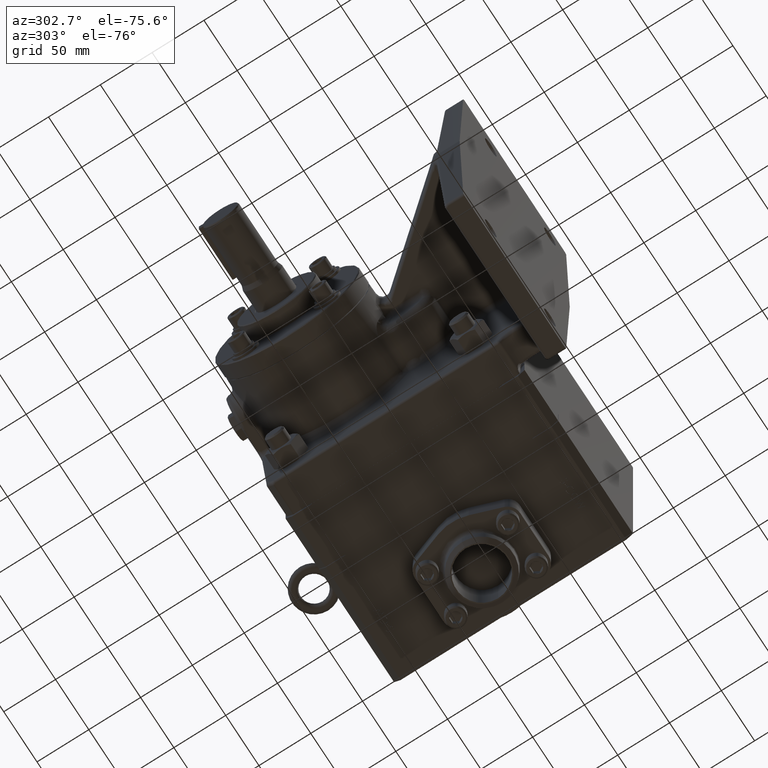
[diagram: clean part render]
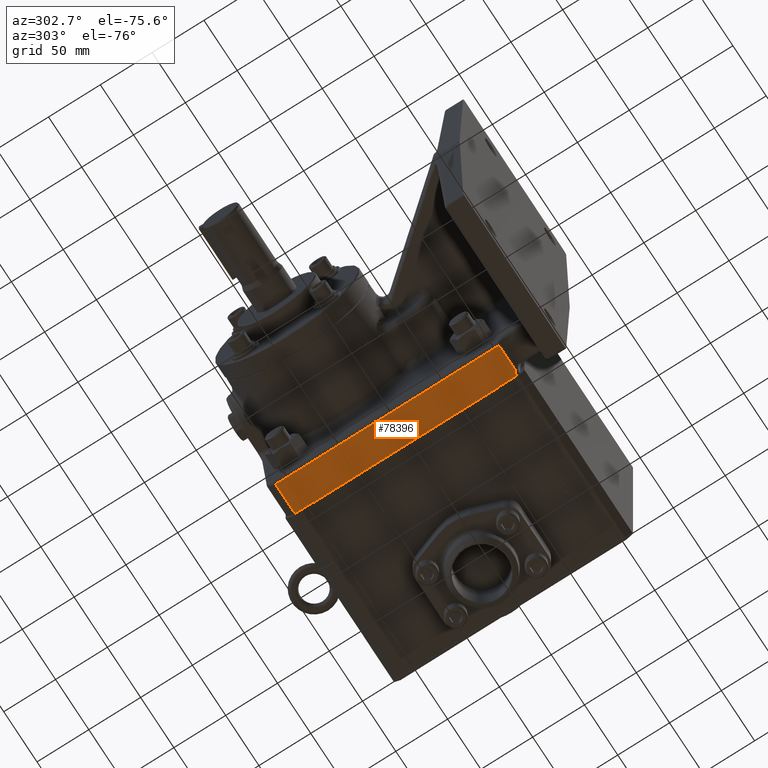
[diagram: same view with one face highlighted and labeled with its STEP entity id]
A machine part, auxiliary view. The second image highlights one B-rep face of the part: STEP entity #78396.
In plain terms, the highlighted planar face has unit normal (0, -0, -1).
Its self-contained STEP definition (entity closure, byte-faithful):
#1504 = EDGE_CURVE ( 'Defeatured_0_761+Defeatured_0_736+Defeatured_0_763+Defeatured_0_735', #3354, #42878, #98555, .T. ) ;
#3354 = VERTEX_POINT ( 'NONE', #80752 ) ;
#3557 = DIRECTION ( 'NONE',  ( 1.000000000000000000, 0.0000000000000000000, 0.0000000000000000000 ) ) ;
#4479 = VERTEX_POINT ( 'NONE', #97637 ) ;
#6298 = ORIENTED_EDGE ( 'NONE', *, *, #1504, .T. ) ;
#6302 = EDGE_CURVE ( 'Defeatured_0_761+Defeatured_0_730+Defeatured_0_735+Defeatured_0_760', #50195, #21581, #98141, .T. ) ;
#7601 = LINE ( 'NONE', #87093, #36719 ) ;
#8829 = EDGE_CURVE ( 'Defeatured_0_763+Defeatured_0_761+Defeatured_0_736+Defeatured_0_816', #3354, #82587, #24562, .T. ) ;
#11271 = CARTESIAN_POINT ( 'NONE',  ( -0.2230401497225062700, -5.786994672716434500, -4.499999999999999100 ) ) ;
#12260 = CARTESIAN_POINT ( 'NONE',  ( -0.06928260406817542100, -5.731260809735999800, -4.499999999999999100 ) ) ;
#12664 = CARTESIAN_POINT ( 'NONE',  ( -1.164117347023151600, -5.847143462712848500, -4.499999999999999100 ) ) ;
#14851 = VERTEX_POINT ( 'NONE', #92620 ) ;
#14885 = VECTOR ( 'NONE', #70358, 39.37007874015748100 ) ;
#20331 = DIRECTION ( 'NONE',  ( 0.0000000000000000000, -1.000000000000000000, 6.173667782292121000E-017 ) ) ;
#21466 = VECTOR ( 'NONE', #3557, 39.37007874015748100 ) ;
#21581 = VERTEX_POINT ( 'NONE', #46993 ) ;
#22038 = VECTOR ( 'NONE', #28043, 39.37007874015748100 ) ;
#22126 = ORIENTED_EDGE ( 'NONE', *, *, #93005, .F. ) ;
#22165 = ORIENTED_EDGE ( 'NONE', *, *, #74347, .F. ) ;
#23599 = ORIENTED_EDGE ( 'NONE', *, *, #6302, .T. ) ;
#23633 = CARTESIAN_POINT ( 'NONE',  ( -0.01500000000000052300, 3.002856537287150300, -4.500000000000000000 ) ) ;
#23736 = VECTOR ( 'NONE', #97304, 39.37007874015748100 ) ;
#24562 = LINE ( 'NONE', #49807, #81205 ) ;
#26969 = VECTOR ( 'NONE', #46958, 39.37007874015748100 ) ;
#28043 = DIRECTION ( 'NONE',  ( 1.000000000000000000, 0.0000000000000000000, 0.0000000000000000000 ) ) ;
#30724 = ORIENTED_EDGE ( 'NONE', *, *, #55004, .T. ) ;
#30955 = ORIENTED_EDGE ( 'NONE', *, *, #67992, .F. ) ;
#33830 = EDGE_LOOP ( 'NONE', ( #87436, #6298, #56050, #23599, #30724, #89348, #22165, #30955, #22126, #52455 ) ) ;
#34333 = DIRECTION ( 'NONE',  ( 3.854207768009534800E-034, -1.000000000000000000, 6.173667782292121000E-017 ) ) ;
#34518 = CARTESIAN_POINT ( 'NONE',  ( -1.279999999999999800, -5.731260809735999800, -4.499999999999999100 ) ) ;
#35942 = CARTESIAN_POINT ( 'NONE',  ( -0.01500000000000025300, 2.031062163145815400, -4.499999999999999100 ) ) ;
#36719 = VECTOR ( 'NONE', #48394, 39.37007874015748100 ) ;
#41135 = DIRECTION ( 'NONE',  ( -1.000000000000000000, -0.0000000000000000000, -0.0000000000000000000 ) ) ;
#42666 = LINE ( 'NONE', #34518, #22038 ) ;
#42878 = VERTEX_POINT ( 'NONE', #35942 ) ;
#43047 = CARTESIAN_POINT ( 'NONE',  ( -0.1260844170496867600, -5.731260809735998900, -4.499999999999999100 ) ) ;
#43670 = DIRECTION ( 'NONE',  ( 0.0000000000000000000, -6.173667782292121000E-017, -1.000000000000000000 ) ) ;
#45574 = VERTEX_POINT ( 'NONE', #76142 ) ;
#46859 = LINE ( 'NONE', #93982, #21466 ) ;
#46958 = DIRECTION ( 'NONE',  ( 1.230061111106550300E-016, -1.000000000000000000, 6.173667782292121000E-017 ) ) ;
#46993 = CARTESIAN_POINT ( 'NONE',  ( -0.001999999999999117100, -5.031062163145816300, -4.499999999999999100 ) ) ;
#48394 = DIRECTION ( 'NONE',  ( 1.000000000000000000, 1.230061111106550500E-016, -0.0000000000000000000 ) ) ;
#49359 = FACE_OUTER_BOUND ( 'NONE', #33830, .T. ) ;
#49807 = CARTESIAN_POINT ( 'NONE',  ( -1.279999999999999800, 2.703150909802378700, -4.500000000000000000 ) ) ;
#50195 = VERTEX_POINT ( 'NONE', #51034 ) ;
#50565 = EDGE_CURVE ( 'Defeatured_0_793+Defeatured_0_761+Defeatured_0_816+Defeatured_0_855', #82587, #4479, #67612, .T. ) ;
#51034 = CARTESIAN_POINT ( 'NONE',  ( -0.001999999999999985700, 2.031062163145815900, -4.499999999999999100 ) ) ;
#51307 = VERTEX_POINT ( 'NONE', #98080 ) ;
#51703 = CARTESIAN_POINT ( 'NONE',  ( -1.279999999999999800, 3.002856537287150300, -4.500000000000000000 ) ) ;
#52022 = EDGE_CURVE ( 'Defeatured_0_761+Defeatured_0_735+Defeatured_0_736+Defeatured_0_730', #42878, #50195, #7601, .T. ) ;
#52455 = ORIENTED_EDGE ( 'NONE', *, *, #50565, .F. ) ;
#53759 = LINE ( 'NONE', #92049, #71800 ) ;
#54867 =( BOUNDED_CURVE ( )  B_SPLINE_CURVE ( 3, ( #11271, #58144, #43047, #12260 ),
 .UNSPECIFIED., .F., .F. ) 
 B_SPLINE_CURVE_WITH_KNOTS ( ( 4, 4 ),
 ( 3.231168444561600200, 3.926381829401691900 ),
 .UNSPECIFIED. ) 
 CURVE ( )  GEOMETRIC_REPRESENTATION_ITEM ( )  RATIONAL_B_SPLINE_CURVE ( ( 1.000000000000000000, 0.9601271211070164800, 0.9601271211070164800, 1.000000000000000000 ) ) 
 REPRESENTATION_ITEM ( '' )  );
#54913 = CARTESIAN_POINT ( 'NONE',  ( -0.001999999999999869500, 3.002856537287150300, -4.500000000000000000 ) ) ;
#55004 = EDGE_CURVE ( 'Defeatured_0_761+Defeatured_0_760+Defeatured_0_730+Defeatured_0_791', #21581, #51307, #53759, .T. ) ;
#55509 = AXIS2_PLACEMENT_3D ( 'NONE', #51703, #43670, #20331 ) ;
#55570 = VECTOR ( 'NONE', #34333, 39.37007874015748100 ) ;
#56050 = ORIENTED_EDGE ( 'NONE', *, *, #52022, .T. ) ;
#58144 = CARTESIAN_POINT ( 'NONE',  ( -0.1794653851438038900, -5.750610283277994800, -4.499999999999999100 ) ) ;
#67200 = VERTEX_POINT ( 'NONE', #99465 ) ;
#67612 = LINE ( 'NONE', #12664, #55570 ) ;
#67992 = EDGE_CURVE ( 'Defeatured_0_789+Defeatured_0_761+Defeatured_0_853+Defeatured_0_790', #14851, #45574, #54867, .T. ) ;
#70358 = DIRECTION ( 'NONE',  ( 1.230061111106550300E-016, -1.000000000000000000, 6.173667782292121000E-017 ) ) ;
#71800 = VECTOR ( 'NONE', #75202, 39.37007874015748100 ) ;
#74347 = EDGE_CURVE ( 'Defeatured_0_790+Defeatured_0_761+Defeatured_0_789+Defeatured_0_791', #45574, #67200, #42666, .T. ) ;
#75202 = DIRECTION ( 'NONE',  ( -1.000000000000000000, -1.230061111106550500E-016, 0.0000000000000000000 ) ) ;
#76142 = CARTESIAN_POINT ( 'NONE',  ( -0.06928260406817542100, -5.731260809735999800, -4.499999999999999100 ) ) ;
#78396 = ADVANCED_FACE ( 'Defeatured_0_761', ( #49359 ), #97877, .T. ) ;
#78826 = CARTESIAN_POINT ( 'NONE',  ( -1.164117347023151600, 2.703150909802378700, -4.500000000000000000 ) ) ;
#80752 = CARTESIAN_POINT ( 'NONE',  ( -0.01500000000000052300, 2.703150909802378700, -4.500000000000000000 ) ) ;
#81205 = VECTOR ( 'NONE', #41135, 39.37007874015748100 ) ;
#82587 = VERTEX_POINT ( 'NONE', #78826 ) ;
#87093 = CARTESIAN_POINT ( 'NONE',  ( -0.01500000000000025300, 2.031062163145815400, -4.499999999999999100 ) ) ;
#87436 = ORIENTED_EDGE ( 'NONE', *, *, #8829, .F. ) ;
#89348 = ORIENTED_EDGE ( 'NONE', *, *, #98867, .T. ) ;
#89481 = CARTESIAN_POINT ( 'NONE',  ( -0.01500000000000052300, 3.002856537287150300, -4.500000000000000000 ) ) ;
#92049 = CARTESIAN_POINT ( 'NONE',  ( -0.01499999999999938200, -5.031062163145815400, -4.499999999999999100 ) ) ;
#92620 = CARTESIAN_POINT ( 'NONE',  ( -0.2230401497225062700, -5.786994672716434500, -4.499999999999999100 ) ) ;
#93005 = EDGE_CURVE ( 'Defeatured_0_792+Defeatured_0_761+Defeatured_0_855+Defeatured_0_853', #4479, #14851, #46859, .T. ) ;
#93982 = CARTESIAN_POINT ( 'NONE',  ( -1.279999999999999800, -5.786994672716434500, -4.499999999999999100 ) ) ;
#95893 = LINE ( 'NONE', #23633, #26969 ) ;
#97304 = DIRECTION ( 'NONE',  ( 1.230061111106550300E-016, -1.000000000000000000, 6.173667782292121000E-017 ) ) ;
#97637 = CARTESIAN_POINT ( 'NONE',  ( -1.164117347023151600, -5.786994672716434500, -4.499999999999999100 ) ) ;
#97877 = PLANE ( 'NONE',  #55509 ) ;
#98080 = CARTESIAN_POINT ( 'NONE',  ( -0.01499999999999938200, -5.031062163145815400, -4.499999999999999100 ) ) ;
#98141 = LINE ( 'NONE', #54913, #14885 ) ;
#98555 = LINE ( 'NONE', #89481, #23736 ) ;
#98867 = EDGE_CURVE ( 'Defeatured_0_761+Defeatured_0_791+Defeatured_0_760+Defeatured_0_790', #51307, #67200, #95893, .T. ) ;
#99465 = CARTESIAN_POINT ( 'NONE',  ( -0.01499999999999943000, -5.731260809735999800, -4.499999999999999100 ) ) ;